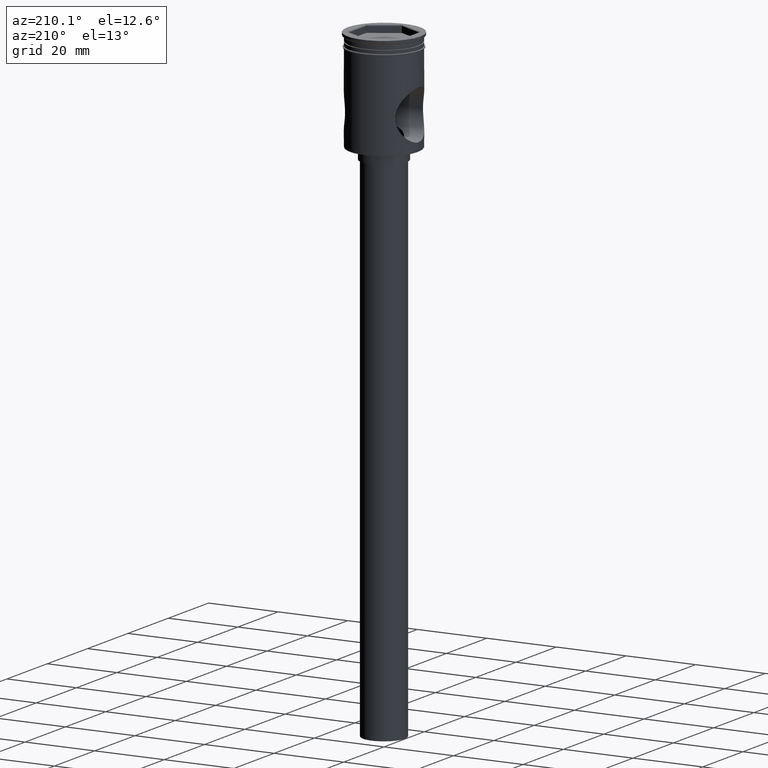
[diagram: clean part render]
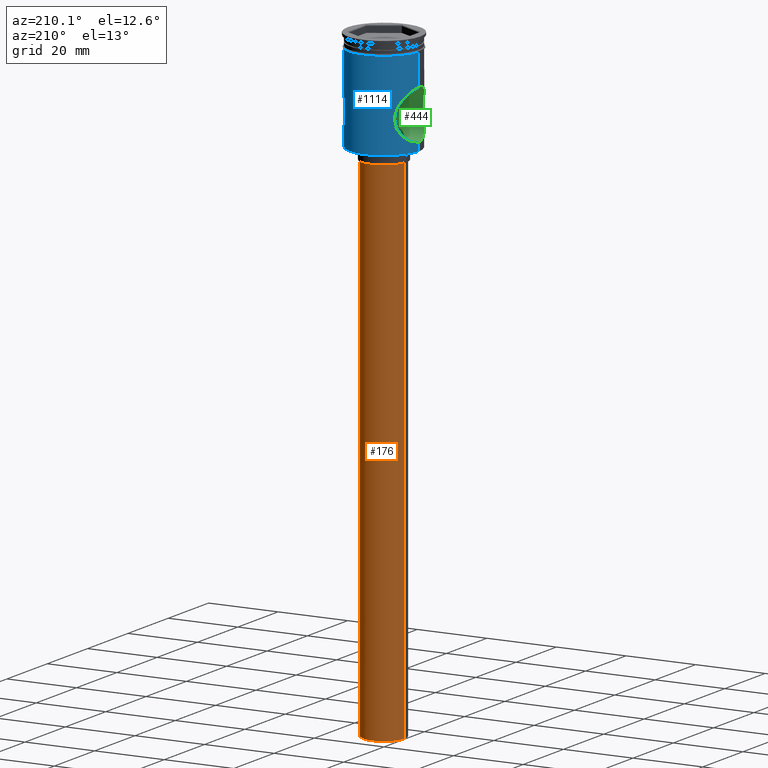
[diagram: same view with three faces highlighted in distinct colors, each labeled with its STEP entity id]
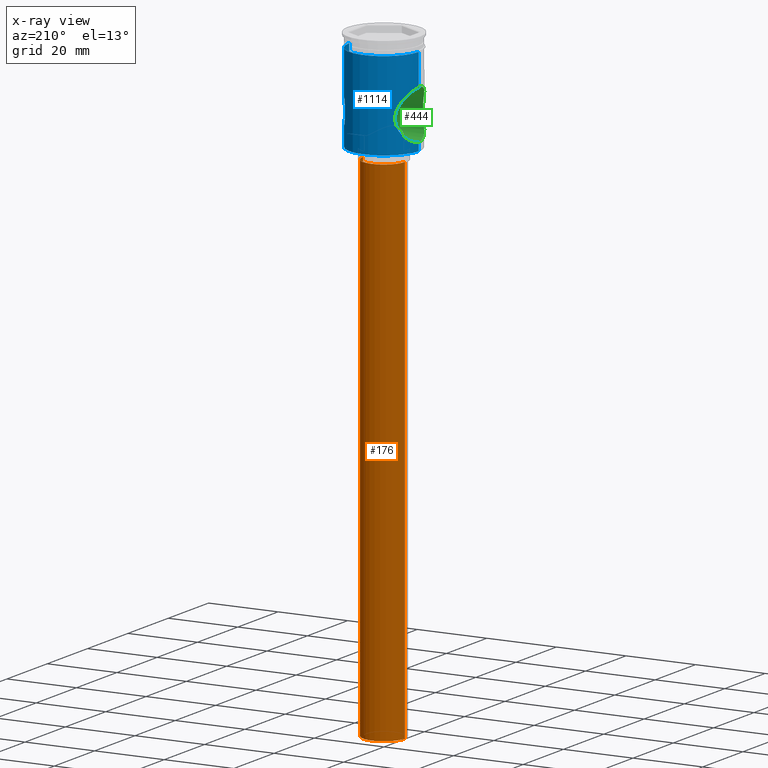
[diagram: x-ray of the same camera — body ghosted, the three highlighted faces saturated]
A machine part, auxiliary view with three faces highlighted in distinct colors.
The next image is the same camera in x-ray (body ghosted, the three faces saturated) — at least one of them is partly hidden behind the body in this view.
Their STEP definitions:

[orange] entity #176 — the highlighted cylindrical surface (edge-blend (fillet) strip) has radius 6 mm, axis along (-0, -0, 1).
#9 = CARTESIAN_POINT ( 'NONE',  ( 0.000000000000000000, 0.000000000000000000, -179.5000000000000000 ) ) ;
#16 = DIRECTION ( 'NONE',  ( 0.000000000000000000, 0.000000000000000000, -1.000000000000000000 ) ) ;
#126 = EDGE_CURVE ( 'NONE', #672, #527, #733, .T. ) ;
#139 = LINE ( 'NONE', #971, #869 ) ;
#172 = CARTESIAN_POINT ( 'NONE',  ( -6.000000000000000888, 7.347880794884120722E-16, -32.50000000000000000 ) ) ;
#176 = ADVANCED_FACE ( 'NONE', ( #1306 ), #585, .T. ) ;
#212 = LINE ( 'NONE', #569, #1074 ) ;
#292 = ORIENTED_EDGE ( 'NONE', *, *, #959, .F. ) ;
#364 = DIRECTION ( 'NONE',  ( -1.000000000000000000, 0.000000000000000000, 0.000000000000000000 ) ) ;
#403 = ORIENTED_EDGE ( 'NONE', *, *, #126, .T. ) ;
#413 = AXIS2_PLACEMENT_3D ( 'NONE', #9, #473, #1446 ) ;
#473 = DIRECTION ( 'NONE',  ( -0.000000000000000000, -0.000000000000000000, 1.000000000000000000 ) ) ;
#527 = VERTEX_POINT ( 'NONE', #1083 ) ;
#539 = CIRCLE ( 'NONE', #787, 6.000000000000000888 ) ;
#569 = CARTESIAN_POINT ( 'NONE',  ( 6.000000000000000888, 0.000000000000000000, -179.5000000000000000 ) ) ;
#585 = CYLINDRICAL_SURFACE ( 'NONE', #413, 6.000000000000000888 ) ;
#630 = CARTESIAN_POINT ( 'NONE',  ( 6.000000000000000888, 0.000000000000000000, -179.5000000000000000 ) ) ;
#672 = VERTEX_POINT ( 'NONE', #172 ) ;
#676 = VERTEX_POINT ( 'NONE', #754 ) ;
#731 = CARTESIAN_POINT ( 'NONE',  ( 0.000000000000000000, 0.000000000000000000, -179.5000000000000000 ) ) ;
#733 = CIRCLE ( 'NONE', #1135, 6.000000000000000888 ) ;
#754 = CARTESIAN_POINT ( 'NONE',  ( -6.000000000000000888, 7.347880794884120722E-16, -179.5000000000000000 ) ) ;
#787 = AXIS2_PLACEMENT_3D ( 'NONE', #731, #962, #847 ) ;
#847 = DIRECTION ( 'NONE',  ( -1.000000000000000000, 0.000000000000000000, 0.000000000000000000 ) ) ;
#855 = EDGE_LOOP ( 'NONE', ( #292, #1501, #403, #1369 ) ) ;
#869 = VECTOR ( 'NONE', #1449, 1000.000000000000000 ) ;
#897 = EDGE_CURVE ( 'NONE', #676, #672, #139, .T. ) ;
#959 = EDGE_CURVE ( 'NONE', #676, #976, #539, .T. ) ;
#962 = DIRECTION ( 'NONE',  ( 0.000000000000000000, 0.000000000000000000, -1.000000000000000000 ) ) ;
#971 = CARTESIAN_POINT ( 'NONE',  ( -6.000000000000000888, 7.347880794884120722E-16, -179.5000000000000000 ) ) ;
#976 = VERTEX_POINT ( 'NONE', #630 ) ;
#1074 = VECTOR ( 'NONE', #1513, 1000.000000000000000 ) ;
#1083 = CARTESIAN_POINT ( 'NONE',  ( 6.000000000000000888, 0.000000000000000000, -32.50000000000000000 ) ) ;
#1135 = AXIS2_PLACEMENT_3D ( 'NONE', #1300, #16, #364 ) ;
#1300 = CARTESIAN_POINT ( 'NONE',  ( 0.000000000000000000, 0.000000000000000000, -32.50000000000000000 ) ) ;
#1306 = FACE_OUTER_BOUND ( 'NONE', #855, .T. ) ;
#1369 = ORIENTED_EDGE ( 'NONE', *, *, #1463, .F. ) ;
#1446 = DIRECTION ( 'NONE',  ( 1.000000000000000000, 0.000000000000000000, 0.000000000000000000 ) ) ;
#1449 = DIRECTION ( 'NONE',  ( -0.000000000000000000, -0.000000000000000000, 1.000000000000000000 ) ) ;
#1463 = EDGE_CURVE ( 'NONE', #976, #527, #212, .T. ) ;
#1501 = ORIENTED_EDGE ( 'NONE', *, *, #897, .T. ) ;
#1513 = DIRECTION ( 'NONE',  ( -0.000000000000000000, -0.000000000000000000, 1.000000000000000000 ) ) ;

[blue] entity #1114 — the highlighted cylindrical surface (partial cylindrical patch) has radius 10 mm, axis along (-0, -0, 1).
#1 = CARTESIAN_POINT ( 'NONE',  ( 9.999999999999994671, 0.000000000000000000, -27.00000000000001066 ) ) ;
#7 = CARTESIAN_POINT ( 'NONE',  ( -7.574535355013248150, 6.529908853628296761, -22.53201108648862316 ) ) ;
#15 = EDGE_CURVE ( 'NONE', #893, #193, #904, .T. ) ;
#24 = B_SPLINE_CURVE_WITH_KNOTS ( 'NONE', 3,
 ( #263, #1438, #605, #722, #1476, #256, #140, #503, #369, #50, #1450, #623, #1227, #730, #844, #150, #1100, #508, #1316, #1088, #1081, #26, #996, #1210, #982, #1460, #385, #1333, #989, #272, #712, #1467, #391, #1343, #870, #165, #1194, #399, #132, #186, #758, #533, #894, #287, #425, #643 ),
 .UNSPECIFIED., .F., .F.,
 ( 4, 2, 2, 2, 2, 2, 2, 2, 2, 2, 2, 2, 2, 2, 2, 2, 2, 2, 2, 2, 2, 2, 4 ),
 ( 0.000000000000000000, 0.001421073207666945183, 0.002842146415333890366, 0.004263219623000837066, 0.005684292830667782466, 0.007105366038334726998, 0.008526439246001672398, 0.009236975849835149868, 0.009947512453668627339, 0.01065804905750210654, 0.01136858566133558401, 0.01207912226516906322, 0.01278965886900253895, 0.01421073207666949390, 0.01492126868050296790, 0.01563180528433644190, 0.01705287849200338296, 0.01847395169967032749, 0.01918448830350380149, 0.01989502490733727202, 0.02131609811500421309, 0.02202663471883768362, 0.02273717132267115415 ),
 .UNSPECIFIED. ) ;
#26 = CARTESIAN_POINT ( 'NONE',  ( 7.141373392009660925, 7.000056148497767694, -19.76373034873126144 ) ) ;
#42 = LINE ( 'NONE', #1103, #297 ) ;
#50 = CARTESIAN_POINT ( 'NONE',  ( 8.500359578522527215, 5.279417043634754947, -24.61763755135371312 ) ) ;
#91 = CARTESIAN_POINT ( 'NONE',  ( -9.999999999999998224, 0.4807969081117817733, -27.00000000000001066 ) ) ;
#92 = AXIS2_PLACEMENT_3D ( 'NONE', #1069, #130, #699 ) ;
#100 = CARTESIAN_POINT ( 'NONE',  ( -9.351609315107900500, 3.564938189428367377, -26.04074502495870647 ) ) ;
#101 = DIRECTION ( 'NONE',  ( -0.000000000000000000, -0.000000000000000000, 1.000000000000000000 ) ) ;
#108 = CARTESIAN_POINT ( 'NONE',  ( -7.322655419112948927, 6.810500286563438976, -18.36528137380275538 ) ) ;
#111 = CARTESIAN_POINT ( 'NONE',  ( -10.00000000000000000, 1.224646799147353256E-15, -3.999999999999996447 ) ) ;
#115 = CARTESIAN_POINT ( 'NONE',  ( -7.963207023572478782, 6.050255927956311730, -16.47232531239752262 ) ) ;
#121 = VERTEX_POINT ( 'NONE', #1 ) ;
#124 = CARTESIAN_POINT ( 'NONE',  ( -9.730782946235683184, 2.316105786581691639, -26.60989879506474054 ) ) ;
#130 = DIRECTION ( 'NONE',  ( -0.000000000000000000, -0.000000000000000000, 1.000000000000000000 ) ) ;
#132 = CARTESIAN_POINT ( 'NONE',  ( 9.553141715981873006, 2.964211287661889571, -13.65436461758242181 ) ) ;
#140 = CARTESIAN_POINT ( 'NONE',  ( 9.349377247001186220, 3.571280898155820172, -26.03738208151085587 ) ) ;
#148 = ORIENTED_EDGE ( 'NONE', *, *, #1206, .F. ) ;
#150 = CARTESIAN_POINT ( 'NONE',  ( 7.379165411094851912, 6.749558967525724817, -21.87002777218119931 ) ) ;
#160 = EDGE_CURVE ( 'NONE', #1475, #532, #634, .T. ) ;
#165 = CARTESIAN_POINT ( 'NONE',  ( 9.267396788860448709, 3.762388530127553476, -14.09286872329777474 ) ) ;
#166 = CYLINDRICAL_SURFACE ( 'NONE', #493, 9.999999999999994671 ) ;
#185 = ORIENTED_EDGE ( 'NONE', *, *, #160, .T. ) ;
#186 = CARTESIAN_POINT ( 'NONE',  ( 9.735967975428478027, 2.325336189795355502, -13.38128717480536345 ) ) ;
#193 = VERTEX_POINT ( 'NONE', #111 ) ;
#210 = CARTESIAN_POINT ( 'NONE',  ( -9.826638545464753349, 1.868062541291059642, -26.75021854738501759 ) ) ;
#216 = CARTESIAN_POINT ( 'NONE',  ( -9.028965068475375944, 4.317457269925931485, -14.47181101200376574 ) ) ;
#217 = EDGE_CURVE ( 'NONE', #532, #379, #1197, .T. ) ;
#228 = CARTESIAN_POINT ( 'NONE',  ( -9.999999999999994671, 1.229780025839397734E-15, -13.00000000000000355 ) ) ;
#233 = CARTESIAN_POINT ( 'NONE',  ( -8.050554706296177088, 5.933943087171876130, -16.28011583648020988 ) ) ;
#238 = EDGE_CURVE ( 'NONE', #1060, #239, #42, .T. ) ;
#239 = VERTEX_POINT ( 'NONE', #1216 ) ;
#241 = CARTESIAN_POINT ( 'NONE',  ( -9.832878540591766026, 1.879722866531852610, -13.24054240779419089 ) ) ;
#256 = CARTESIAN_POINT ( 'NONE',  ( 9.493823586986472662, 3.171854784083770085, -26.25704949909892250 ) ) ;
#263 = CARTESIAN_POINT ( 'NONE',  ( 9.999999999999994671, 0.000000000000000000, -27.00000000000001066 ) ) ;
#266 = DIRECTION ( 'NONE',  ( -0.000000000000000000, -0.000000000000000000, 1.000000000000000000 ) ) ;
#272 = CARTESIAN_POINT ( 'NONE',  ( 7.967226261725709691, 6.044961550507583325, -16.46329765270407108 ) ) ;
#287 = CARTESIAN_POINT ( 'NONE',  ( 9.991574020215791663, 0.4743472386555617204, -13.01202085301403777 ) ) ;
#297 = VECTOR ( 'NONE', #266, 1000.000000000000000 ) ;
#306 = ORIENTED_EDGE ( 'NONE', *, *, #624, .F. ) ;
#343 = CIRCLE ( 'NONE', #1337, 9.999999999999998224 ) ;
#348 = CARTESIAN_POINT ( 'NONE',  ( -9.999999999999996447, 0.000000000000000000, -27.00000000000000355 ) ) ;
#356 = CARTESIAN_POINT ( 'NONE',  ( -8.497179343882921287, 5.284524261307590010, -15.38819392766633243 ) ) ;
#357 = EDGE_LOOP ( 'NONE', ( #185, #679, #148, #481, #306, #1141, #747, #1076 ) ) ;
#358 = DIRECTION ( 'NONE',  ( -0.000000000000000000, -0.000000000000000000, 1.000000000000000000 ) ) ;
#363 = CARTESIAN_POINT ( 'NONE',  ( -7.505468983612143319, 6.608824641700789648, -22.31875249157933183 ) ) ;
#369 = CARTESIAN_POINT ( 'NONE',  ( 8.856372138511654057, 4.657577678256724418, -25.24421500772974269 ) ) ;
#379 = VERTEX_POINT ( 'NONE', #348 ) ;
#385 = CARTESIAN_POINT ( 'NONE',  ( 7.495754172928653425, 6.623269820279323206, -17.68917710553390421 ) ) ;
#391 = CARTESIAN_POINT ( 'NONE',  ( 8.498707828545162712, 5.282283036785497821, -15.38527946463393370 ) ) ;
#399 = CARTESIAN_POINT ( 'NONE',  ( 9.485754788391535186, 3.172574074835096791, -13.75608760595409663 ) ) ;
#425 = CARTESIAN_POINT ( 'NONE',  ( 9.999999999999996447, 0.2371603752032602208, -13.00000000000000711 ) ) ;
#435 = VECTOR ( 'NONE', #358, 1000.000000000000000 ) ;
#436 = VECTOR ( 'NONE', #1481, 1000.000000000000000 ) ;
#457 = CARTESIAN_POINT ( 'NONE',  ( -8.853430568094132980, 4.663155653245508070, -14.76073180007297125 ) ) ;
#477 = CARTESIAN_POINT ( 'NONE',  ( -7.377383315084117932, 6.751497144694277530, -18.13709901651008494 ) ) ;
#481 = ORIENTED_EDGE ( 'NONE', *, *, #15, .T. ) ;
#493 = AXIS2_PLACEMENT_3D ( 'NONE', #891, #896, #1032 ) ;
#503 = CARTESIAN_POINT ( 'NONE',  ( 9.029024665842507957, 4.317593744654971033, -25.52832831042054806 ) ) ;
#508 = CARTESIAN_POINT ( 'NONE',  ( 7.236111701560244747, 6.902383710959966834, -21.18811620976742915 ) ) ;
#532 = VERTEX_POINT ( 'NONE', #597 ) ;
#533 = CARTESIAN_POINT ( 'NONE',  ( 9.932071413309429886, 1.186883990593142979, -13.09730212679606964 ) ) ;
#557 = CARTESIAN_POINT ( 'NONE',  ( -9.932287513067288742, 1.185065133237715562, -13.09699146176595974 ) ) ;
#567 = CARTESIAN_POINT ( 'NONE',  ( -9.867116120145130509, 1.641278058953928198, -26.80890176429204885 ) ) ;
#580 = CARTESIAN_POINT ( 'NONE',  ( -7.723089038241832682, 6.353518016691833914, -22.94679462982522722 ) ) ;
#591 = CARTESIAN_POINT ( 'NONE',  ( -7.381411116935110428, 6.747102913955162151, -21.87877048370861743 ) ) ;
#597 = CARTESIAN_POINT ( 'NONE',  ( -9.999999999999994671, 1.224646799147352665E-15, -29.29999999999997229 ) ) ;
#605 = CARTESIAN_POINT ( 'NONE',  ( 9.965446655919850016, 0.9519641332654187327, -26.95088558220736630 ) ) ;
#620 = CARTESIAN_POINT ( 'NONE',  ( 0.000000000000000000, 0.000000000000000000, -3.999999999999996447 ) ) ;
#623 = CARTESIAN_POINT ( 'NONE',  ( 7.964400624432384390, 6.054727537725132613, -23.54044438658495508 ) ) ;
#624 = EDGE_CURVE ( 'NONE', #239, #193, #343, .T. ) ;
#634 = CIRCLE ( 'NONE', #92, 9.999999999999994671 ) ;
#643 = CARTESIAN_POINT ( 'NONE',  ( 9.999999999999994671, -5.133226810943367768E-18, -13.00000000000000355 ) ) ;
#674 = CARTESIAN_POINT ( 'NONE',  ( -9.991596185262174856, 0.4736682493084680701, -13.01198930438258117 ) ) ;
#679 = ORIENTED_EDGE ( 'NONE', *, *, #217, .T. ) ;
#680 = CARTESIAN_POINT ( 'NONE',  ( -8.503943671969903306, 5.273689396165736731, -24.62422230267287304 ) ) ;
#691 = CARTESIAN_POINT ( 'NONE',  ( -9.957864273581446213, 0.9472565907286251141, -13.06030547907275796 ) ) ;
#697 = CARTESIAN_POINT ( 'NONE',  ( -7.796802139286405087, 6.263237125868982069, -16.86600156342442602 ) ) ;
#699 = DIRECTION ( 'NONE',  ( -1.000000000000000000, 0.000000000000000000, 0.000000000000000000 ) ) ;
#703 = CARTESIAN_POINT ( 'NONE',  ( -9.035512705743391493, 4.303590503429356673, -25.53881697926559013 ) ) ;
#712 = CARTESIAN_POINT ( 'NONE',  ( 8.053311715077979827, 5.930176009131115755, -16.27420902905398137 ) ) ;
#714 = EDGE_CURVE ( 'NONE', #1475, #121, #1357, .T. ) ;
#722 = CARTESIAN_POINT ( 'NONE',  ( 9.834047061028444503, 1.872933838790287631, -26.76115115372198616 ) ) ;
#730 = CARTESIAN_POINT ( 'NONE',  ( 7.573222039985391341, 6.531435267832768510, -22.52812481744788897 ) ) ;
#746 = DIRECTION ( 'NONE',  ( -0.000000000000000000, -0.000000000000000000, 1.000000000000000000 ) ) ;
#747 = ORIENTED_EDGE ( 'NONE', *, *, #1292, .F. ) ;
#758 = CARTESIAN_POINT ( 'NONE',  ( 9.832512437962645180, 1.881659858244550509, -13.24107387809922898 ) ) ;
#761 = CARTESIAN_POINT ( 'NONE',  ( 9.999999999999994671, 0.000000000000000000, 0.000000000000000000 ) ) ;
#811 = CARTESIAN_POINT ( 'NONE',  ( -7.191763660842745765, 6.949507115151161152, -20.96152780032075569 ) ) ;
#819 = CARTESIAN_POINT ( 'NONE',  ( -9.492393824703034610, 3.176669941205828795, -13.74509325342724253 ) ) ;
#825 = CARTESIAN_POINT ( 'NONE',  ( -9.675488818793542833, 2.536388918100093370, -26.52836702033825489 ) ) ;
#835 = CARTESIAN_POINT ( 'NONE',  ( -8.322069302564289117, 5.553051878775062455, -24.28499264081531095 ) ) ;
#844 = CARTESIAN_POINT ( 'NONE',  ( 7.503273641266415162, 6.611317046147628496, -22.31171733569519944 ) ) ;
#870 = CARTESIAN_POINT ( 'NONE',  ( 9.029975738911995009, 4.315133941133939999, -14.47019995321800323 ) ) ;
#891 = CARTESIAN_POINT ( 'NONE',  ( 0.000000000000000000, 0.000000000000000000, 0.000000000000000000 ) ) ;
#893 = VERTEX_POINT ( 'NONE', #1305 ) ;
#894 = CARTESIAN_POINT ( 'NONE',  ( 9.957729828106900882, 0.9487746701410815220, -13.06049825370512707 ) ) ;
#896 = DIRECTION ( 'NONE',  ( -0.000000000000000000, -0.000000000000000000, 1.000000000000000000 ) ) ;
#904 = LINE ( 'NONE', #1042, #1439 ) ;
#914 = CARTESIAN_POINT ( 'NONE',  ( 9.999999999999994671, 0.000000000000000000, -29.29999999999997229 ) ) ;
#952 = CARTESIAN_POINT ( 'NONE',  ( -7.569330506494653221, 6.535933251526299337, -17.48356472559870411 ) ) ;
#982 = CARTESIAN_POINT ( 'NONE',  ( 7.234464554488559962, 6.904114004842417884, -18.82145945963317857 ) ) ;
#989 = CARTESIAN_POINT ( 'NONE',  ( 7.801002067758135539, 6.258004569467825462, -16.85560777748649386 ) ) ;
#996 = CARTESIAN_POINT ( 'NONE',  ( 7.153235015771536531, 6.988014041043824953, -19.52714534028610061 ) ) ;
#1032 = DIRECTION ( 'NONE',  ( 1.000000000000000000, 0.000000000000000000, 0.000000000000000000 ) ) ;
#1039 = CARTESIAN_POINT ( 'NONE',  ( -7.141989287018506438, 6.999427809131203659, -20.49012689816927946 ) ) ;
#1042 = CARTESIAN_POINT ( 'NONE',  ( -9.999999999999994671, 1.224646799147352665E-15, 0.000000000000000000 ) ) ;
#1050 = CARTESIAN_POINT ( 'NONE',  ( -9.999999999999996447, 0.000000000000000000, -27.00000000000000355 ) ) ;
#1056 = CARTESIAN_POINT ( 'NONE',  ( -7.717429328536875133, 6.360383034377457001, -17.06803860621227287 ) ) ;
#1060 = VERTEX_POINT ( 'NONE', #1443 ) ;
#1062 = CARTESIAN_POINT ( 'NONE',  ( -8.056358060451357161, 5.926078000082595665, -23.73242365119358155 ) ) ;
#1069 = CARTESIAN_POINT ( 'NONE',  ( 0.000000000000000000, 0.000000000000000000, -29.29999999999997229 ) ) ;
#1076 = ORIENTED_EDGE ( 'NONE', *, *, #714, .F. ) ;
#1081 = CARTESIAN_POINT ( 'NONE',  ( 7.141483849871202771, 6.999943458932625262, -20.23958506209359243 ) ) ;
#1088 = CARTESIAN_POINT ( 'NONE',  ( 7.153700441637879770, 6.987541224765998926, -20.48080140017840733 ) ) ;
#1100 = CARTESIAN_POINT ( 'NONE',  ( 7.325106434378655607, 6.807865243658028476, -21.64544578927129237 ) ) ;
#1103 = CARTESIAN_POINT ( 'NONE',  ( 9.999999999999994671, 0.000000000000000000, 0.000000000000000000 ) ) ;
#1114 = ADVANCED_FACE ( 'NONE', ( #1230 ), #166, .T. ) ;
#1141 = ORIENTED_EDGE ( 'NONE', *, *, #238, .F. ) ;
#1154 = CARTESIAN_POINT ( 'NONE',  ( -9.965325511264431668, 0.9525671816038204787, -26.95070955909274346 ) ) ;
#1164 = CARTESIAN_POINT ( 'NONE',  ( -9.494221684495640190, 3.170672659151728912, -26.25765240908376441 ) ) ;
#1180 = CARTESIAN_POINT ( 'NONE',  ( -7.500597748671954612, 6.614342876288898054, -17.69704926583546722 ) ) ;
#1185 = CARTESIAN_POINT ( 'NONE',  ( -9.347318963212909892, 3.576349491498996613, -13.96584429441086250 ) ) ;
#1194 = CARTESIAN_POINT ( 'NONE',  ( 9.343068346694408888, 3.570972421456893642, -13.97506645596566877 ) ) ;
#1197 = LINE ( 'NONE', #1427, #435 ) ;
#1206 = EDGE_CURVE ( 'NONE', #893, #379, #1352, .T. ) ;
#1208 = DIRECTION ( 'NONE',  ( 1.000000000000000000, 0.000000000000000000, 0.000000000000000000 ) ) ;
#1210 = CARTESIAN_POINT ( 'NONE',  ( 7.199668910925416832, 6.940164191266630311, -19.05657392165621289 ) ) ;
#1216 = CARTESIAN_POINT ( 'NONE',  ( 9.999999999999998224, 0.000000000000000000, -3.999999999999996447 ) ) ;
#1227 = CARTESIAN_POINT ( 'NONE',  ( 7.796463043157196182, 6.266459839169562507, -23.15209899686185224 ) ) ;
#1230 = FACE_OUTER_BOUND ( 'NONE', #357, .T. ) ;
#1288 = CARTESIAN_POINT ( 'NONE',  ( -7.969012120586809189, 6.042611853496009822, -23.54072391938827735 ) ) ;
#1292 = EDGE_CURVE ( 'NONE', #121, #1060, #24, .T. ) ;
#1298 = CARTESIAN_POINT ( 'NONE',  ( -9.999999999999992895, 0.2368473339933030442, -13.00000000000000355 ) ) ;
#1304 = CARTESIAN_POINT ( 'NONE',  ( -9.736384942666980180, 2.323699784143521185, -13.38067151163704871 ) ) ;
#1305 = CARTESIAN_POINT ( 'NONE',  ( -9.999999999999994671, 1.229780025839397734E-15, -13.00000000000000355 ) ) ;
#1316 = CARTESIAN_POINT ( 'NONE',  ( 7.201179731105407100, 6.938600208746065867, -20.95536877560809330 ) ) ;
#1333 = CARTESIAN_POINT ( 'NONE',  ( 7.720495804876724044, 6.356685689900112735, -17.05985571267803991 ) ) ;
#1337 = AXIS2_PLACEMENT_3D ( 'NONE', #620, #746, #1208 ) ;
#1343 = CARTESIAN_POINT ( 'NONE',  ( 8.857763224790600631, 4.655166966848104160, -14.75332674821394185 ) ) ;
#1352 = B_SPLINE_CURVE_WITH_KNOTS ( 'NONE', 3,
 ( #228, #1298, #674, #691, #557, #241, #1304, #819, #1185, #216, #457, #356, #1406, #233, #115, #697, #1056, #952, #1180, #477, #108, #1433, #1398, #1039, #811, #1414, #591, #363, #7, #580, #1532, #1288, #1062, #835, #680, #1525, #703, #100, #1164, #825, #124, #210, #567, #1154, #91, #1050 ),
 .UNSPECIFIED., .F., .F.,
 ( 4, 2, 2, 2, 2, 2, 2, 2, 2, 2, 2, 2, 2, 2, 2, 2, 2, 2, 2, 2, 2, 2, 4 ),
 ( 0.02273717132267112292, 0.02344677004960169994, 0.02415636877653227696, 0.02557556623039343099, 0.02699476368425458156, 0.02841396113811573559, 0.02983315859197688963, 0.03054275731890747012, 0.03125235604583804366, 0.03196195477276862762, 0.03267155349969920464, 0.03409075095356035867, 0.03550994840742151271, 0.03621954713435208278, 0.03692914586128265980, 0.03763874458821323682, 0.03834834331514381384, 0.03976754076900496787, 0.04118673822286612884, 0.04260593567672728288, 0.04331553440365785990, 0.04402513313058842997, 0.04544433058444957707 ),
 .UNSPECIFIED. ) ;
#1357 = LINE ( 'NONE', #761, #436 ) ;
#1398 = CARTESIAN_POINT ( 'NONE',  ( -7.140877080678154520, 7.000562488098499792, -19.52635574343557323 ) ) ;
#1406 = CARTESIAN_POINT ( 'NONE',  ( -8.315544161946238688, 5.562748588078728851, -15.72768175892419862 ) ) ;
#1414 = CARTESIAN_POINT ( 'NONE',  ( -7.326263957022342233, 6.806624336356017935, -21.65073055260620905 ) ) ;
#1427 = CARTESIAN_POINT ( 'NONE',  ( -9.999999999999994671, 1.224646799147352665E-15, 0.000000000000000000 ) ) ;
#1433 = CARTESIAN_POINT ( 'NONE',  ( -7.189382404875349408, 6.951946978929631094, -19.05590796920064633 ) ) ;
#1438 = CARTESIAN_POINT ( 'NONE',  ( 9.999999999999994671, 0.4814323775651360160, -27.00000000000000711 ) ) ;
#1439 = VECTOR ( 'NONE', #101, 1000.000000000000000 ) ;
#1443 = CARTESIAN_POINT ( 'NONE',  ( 9.999999999999994671, -5.133226810943367768E-18, -13.00000000000000355 ) ) ;
#1450 = CARTESIAN_POINT ( 'NONE',  ( 8.315624236750037923, 5.562535070965512141, -24.27231501587448292 ) ) ;
#1460 = CARTESIAN_POINT ( 'NONE',  ( 7.368839572955796058, 6.761454996973014886, -18.12764364703029329 ) ) ;
#1467 = CARTESIAN_POINT ( 'NONE',  ( 8.316470757484857756, 5.561257273121390732, -15.72607428983809008 ) ) ;
#1475 = VERTEX_POINT ( 'NONE', #914 ) ;
#1476 = CARTESIAN_POINT ( 'NONE',  ( 9.735585976469911529, 2.326309258653758594, -26.61812786508321693 ) ) ;
#1481 = DIRECTION ( 'NONE',  ( -0.000000000000000000, -0.000000000000000000, 1.000000000000000000 ) ) ;
#1525 = CARTESIAN_POINT ( 'NONE',  ( -8.860185483737918588, 4.650373212660217526, -25.25064384002004658 ) ) ;
#1532 = CARTESIAN_POINT ( 'NONE',  ( -7.802583678074495488, 6.256037095215747357, -23.14831442975813403 ) ) ;

[green] entity #444 — the highlighted cylindrical surface (edge-blend (fillet) strip) has radius 7 mm, axis along (1, -0, -0).
#1 = CARTESIAN_POINT ( 'NONE',  ( 9.999999999999994671, 0.000000000000000000, -27.00000000000001066 ) ) ;
#48 = EDGE_CURVE ( 'NONE', #628, #281, #743, .T. ) ;
#60 = CARTESIAN_POINT ( 'NONE',  ( 9.494221684495640190, -3.170672659151725803, -26.25765240908376441 ) ) ;
#70 = CARTESIAN_POINT ( 'NONE',  ( 9.999999999999996447, -0.2368473339933005184, -13.00000000000000178 ) ) ;
#73 = CARTESIAN_POINT ( 'NONE',  ( -3.945877027014517591, -3.087718830034456463, -26.28892569280893809 ) ) ;
#79 = CARTESIAN_POINT ( 'NONE',  ( 9.999999999999994671, -5.133226810943367768E-18, -13.00000000000000355 ) ) ;
#84 = CARTESIAN_POINT ( 'NONE',  ( 7.381411116935109540, -6.747102913955163039, -21.87877048370861033 ) ) ;
#86 = CARTESIAN_POINT ( 'NONE',  ( -1.173690506892070884, -4.863162860794930431, -25.03506475786364049 ) ) ;
#87 = CARTESIAN_POINT ( 'NONE',  ( -7.325106434378655607, -6.807865243658027588, -21.64544578927128882 ) ) ;
#93 = CARTESIAN_POINT ( 'NONE',  ( -1.804206400145115019, -4.665928648188177874, -25.21882270820486127 ) ) ;
#95 = CARTESIAN_POINT ( 'NONE',  ( -7.503273641266416050, -6.611317046147628496, -22.31171733569519944 ) ) ;
#103 = CARTESIAN_POINT ( 'NONE',  ( -7.141483849871206324, -6.999943458932624374, -20.23958506209359243 ) ) ;
#120 = CARTESIAN_POINT ( 'NONE',  ( -9.485754788391531633, -3.172574074835091462, -13.75608760595409308 ) ) ;
#121 = VERTEX_POINT ( 'NONE', #1 ) ;
#143 = ORIENTED_EDGE ( 'NONE', *, *, #1504, .T. ) ;
#184 = CARTESIAN_POINT ( 'NONE',  ( 7.500597748671954612, -6.614342876288897166, -17.69704926583546722 ) ) ;
#189 = CARTESIAN_POINT ( 'NONE',  ( 2.527940221282912070, -4.316828484673395749, -25.51131394923564599 ) ) ;
#199 = DIRECTION ( 'NONE',  ( 1.000000000000000000, -0.000000000000000000, -0.000000000000000000 ) ) ;
#203 = CARTESIAN_POINT ( 'NONE',  ( 7.322655419112947150, -6.810500286563441641, -18.36528137380276249 ) ) ;
#206 = CARTESIAN_POINT ( 'NONE',  ( -7.964400624432382614, -6.054727537725130837, -23.54044438658495153 ) ) ;
#225 = VECTOR ( 'NONE', #504, 1000.000000000000000 ) ;
#236 = CARTESIAN_POINT ( 'NONE',  ( -7.368839572955796058, -6.761454996973015774, -18.12764364703030395 ) ) ;
#281 = VERTEX_POINT ( 'NONE', #774 ) ;
#296 = CARTESIAN_POINT ( 'NONE',  ( 9.999999999999996447, -0.4807969081117849930, -27.00000000000000711 ) ) ;
#303 = CARTESIAN_POINT ( 'NONE',  ( 7.140877080678153632, -7.000562488098498903, -19.52635574343557678 ) ) ;
#310 = CARTESIAN_POINT ( 'NONE',  ( 9.492393824703038163, -3.176669941205827907, -13.74509325342724075 ) ) ;
#311 = ORIENTED_EDGE ( 'NONE', *, *, #1155, .T. ) ;
#316 = CARTESIAN_POINT ( 'NONE',  ( 9.347318963212909892, -3.576349491498993505, -13.96584429441085717 ) ) ;
#320 = CARTESIAN_POINT ( 'NONE',  ( -4.964727920279955242, -0.6817536040784992757, -26.97468307285332045 ) ) ;
#321 = CARTESIAN_POINT ( 'NONE',  ( -7.379165411094855465, -6.749558967525724817, -21.87002777218120286 ) ) ;
#327 = CARTESIAN_POINT ( 'NONE',  ( 1.343304311183351141, -4.827927654831069226, -25.06953992219781924 ) ) ;
#328 = CARTESIAN_POINT ( 'NONE',  ( -7.720495804876727597, -6.356685689900114511, -17.05985571267803991 ) ) ;
#331 = EDGE_CURVE ( 'NONE', #281, #121, #448, .T. ) ;
#337 = CARTESIAN_POINT ( 'NONE',  ( -9.029975738911995009, -4.315133941133940887, -14.47019995321800501 ) ) ;
#340 = FACE_OUTER_BOUND ( 'NONE', #366, .T. ) ;
#346 = CARTESIAN_POINT ( 'NONE',  ( -7.234464554488559962, -6.904114004842420549, -18.82145945963318567 ) ) ;
#348 = CARTESIAN_POINT ( 'NONE',  ( -9.999999999999996447, 0.000000000000000000, -27.00000000000000355 ) ) ;
#366 = EDGE_LOOP ( 'NONE', ( #143, #756, #311, #1057, #479, #980 ) ) ;
#379 = VERTEX_POINT ( 'NONE', #348 ) ;
#408 = CARTESIAN_POINT ( 'NONE',  ( 9.736384942666981956, -2.323699784143519409, -13.38067151163704516 ) ) ;
#414 = CARTESIAN_POINT ( 'NONE',  ( 7.377383315084116155, -6.751497144694275754, -18.13709901651008494 ) ) ;
#422 = CARTESIAN_POINT ( 'NONE',  ( 7.963207023572480558, -6.050255927956311730, -16.47232531239752618 ) ) ;
#424 = CARTESIAN_POINT ( 'NONE',  ( -5.000000000000000888, 0.000000000000000000, -27.00000000000001066 ) ) ;
#429 = B_SPLINE_CURVE_WITH_KNOTS ( 'NONE', 3,
 ( #1520, #440, #686, #1168, #1175, #670, #577, #553, #693, #1394, #1403, #206, #562, #1150, #95, #321, #87, #1045, #1059, #1410, #103, #1034, #1053, #906, #346, #236, #453, #328, #796, #1275, #816, #939, #465, #677, #337, #1420, #1158, #120, #822, #1385, #700, #588, #1071, #431, #790, #447 ),
 .UNSPECIFIED., .F., .F.,
 ( 4, 2, 2, 2, 2, 2, 2, 2, 2, 2, 2, 2, 2, 2, 2, 2, 2, 2, 2, 2, 2, 2, 4 ),
 ( 0.000000000000000000, 0.001421073207666954290, 0.002842146415333908580, 0.004263219623000863087, 0.005684292830667816293, 0.007105366038334770366, 0.008526439246001722705, 0.009236975849835196706, 0.009947512453668670707, 0.01065804905750214297, 0.01136858566133561697, 0.01207912226516908924, 0.01278965886900256151, 0.01421073207666950777, 0.01492126868050297657, 0.01563180528433644884, 0.01705287849200338296, 0.01847395169967032055, 0.01918448830350378762, 0.01989502490733725468, 0.02131609811500418880, 0.02202663471883765586, 0.02273717132267112292 ),
 .UNSPECIFIED. ) ;
#430 = CARTESIAN_POINT ( 'NONE',  ( 4.827093604320183751, -1.346411915329733366, -26.87738926533192441 ) ) ;
#431 = CARTESIAN_POINT ( 'NONE',  ( -9.991574020215788110, -0.4743472386555552256, -13.01202085301403244 ) ) ;
#434 = CARTESIAN_POINT ( 'NONE',  ( 8.860185483737918588, -4.650373212660213085, -25.25064384002004303 ) ) ;
#438 = CARTESIAN_POINT ( 'NONE',  ( 2.247388876111526379, -4.469310144529878848, -25.38840017492477585 ) ) ;
#440 = CARTESIAN_POINT ( 'NONE',  ( -9.999999999999998224, -0.4814323775651352944, -27.00000000000000711 ) ) ;
#444 = ADVANCED_FACE ( 'NONE', ( #340 ), #917, .F. ) ;
#446 = CARTESIAN_POINT ( 'NONE',  ( 4.725794543730263086, -1.666404458266061539, -26.80617625524858383 ) ) ;
#447 = CARTESIAN_POINT ( 'NONE',  ( -9.999999999999994671, 1.229780025839397734E-15, -13.00000000000000355 ) ) ;
#448 = LINE ( 'NONE', #1507, #705 ) ;
#453 = CARTESIAN_POINT ( 'NONE',  ( -7.495754172928653425, -6.623269820279322317, -17.68917710553389711 ) ) ;
#465 = CARTESIAN_POINT ( 'NONE',  ( -8.498707828545159160, -5.282283036785493380, -15.38527946463392659 ) ) ;
#479 = ORIENTED_EDGE ( 'NONE', *, *, #48, .F. ) ;
#504 = DIRECTION ( 'NONE',  ( 1.000000000000000000, -0.000000000000000000, -0.000000000000000000 ) ) ;
#519 = LINE ( 'NONE', #725, #225 ) ;
#526 = CARTESIAN_POINT ( 'NONE',  ( 9.675488818793544610, -2.536388918100088485, -26.52836702033824778 ) ) ;
#536 = CARTESIAN_POINT ( 'NONE',  ( 7.969012120586810966, -6.042611853496006269, -23.54072391938827025 ) ) ;
#540 = CARTESIAN_POINT ( 'NONE',  ( 5.000000000000000888, 5.559607670071811640E-22, -27.00000000000000355 ) ) ;
#543 = CARTESIAN_POINT ( 'NONE',  ( 8.050554706296177088, -5.933943087171876130, -16.28011583648020988 ) ) ;
#544 = CARTESIAN_POINT ( 'NONE',  ( -0.3393453633138837633, -4.991404953799126964, -24.90779897752728544 ) ) ;
#548 = CARTESIAN_POINT ( 'NONE',  ( 8.503943671969897977, -5.273689396165734067, -24.62422230267287304 ) ) ;
#552 = CARTESIAN_POINT ( 'NONE',  ( -1.649477999012780138, -4.722976424013229924, -25.16701381806123550 ) ) ;
#553 = CARTESIAN_POINT ( 'NONE',  ( -9.029024665842506181, -4.317593744654968368, -25.52832831042054451 ) ) ;
#560 = CARTESIAN_POINT ( 'NONE',  ( -2.249958316707900252, -4.476817073581181639, -25.38387512191017237 ) ) ;
#562 = CARTESIAN_POINT ( 'NONE',  ( -7.796463043157197959, -6.266459839169562507, -23.15209899686185580 ) ) ;
#568 = CARTESIAN_POINT ( 'NONE',  ( -4.467234366927137046, -2.269772407451150720, -26.62927481249574413 ) ) ;
#577 = CARTESIAN_POINT ( 'NONE',  ( -9.349377247001186220, -3.571280898155816619, -26.03738208151085942 ) ) ;
#587 = B_SPLINE_CURVE_WITH_KNOTS ( 'NONE', 3,
 ( #79, #70, #903, #776, #1379, #1488, #408, #310, #316, #1509, #1148, #1496, #640, #543, #422, #1142, #1026, #1366, #184, #414, #203, #1256, #303, #1246, #646, #1502, #84, #785, #770, #1134, #1129, #536, #1020, #1264, #548, #434, #909, #1391, #60, #526, #1006, #1482, #882, #1358, #296, #801 ),
 .UNSPECIFIED., .F., .F.,
 ( 4, 2, 2, 2, 2, 2, 2, 2, 2, 2, 2, 2, 2, 2, 2, 2, 2, 2, 2, 2, 2, 2, 4 ),
 ( 0.02273717132267115415, 0.02344677004960173464, 0.02415636877653231512, 0.02557556623039347263, 0.02699476368425463360, 0.02841396113811579111, 0.02983315859197695208, 0.03054275731890752910, 0.03125235604583810611, 0.03196195477276868313, 0.03267155349969926015, 0.03409075095356042112, 0.03550994840742158210, 0.03621954713435215911, 0.03692914586128273613, 0.03763874458821332009, 0.03834834331514389710, 0.03976754076900505808, 0.04118673822286621211, 0.04260593567672736615, 0.04331553440365794316, 0.04402513313058852018, 0.04544433058444967422 ),
 .UNSPECIFIED. ) ;
#588 = CARTESIAN_POINT ( 'NONE',  ( -9.932071413309429886, -1.186883990593140314, -13.09730212679606964 ) ) ;
#628 = VERTEX_POINT ( 'NONE', #1331 ) ;
#640 = CARTESIAN_POINT ( 'NONE',  ( 8.315544161946235135, -5.562748588078726186, -15.72768175892419151 ) ) ;
#646 = CARTESIAN_POINT ( 'NONE',  ( 7.191763660842745765, -6.949507115151161152, -20.96152780032075569 ) ) ;
#653 = CARTESIAN_POINT ( 'NONE',  ( 3.744450800041878580, -3.328521687271348561, -26.16341259425989918 ) ) ;
#670 = CARTESIAN_POINT ( 'NONE',  ( -9.493823586986472662, -3.171854784083766532, -26.25704949909892605 ) ) ;
#677 = CARTESIAN_POINT ( 'NONE',  ( -8.857763224790602408, -4.655166966848104160, -14.75332674821394185 ) ) ;
#685 = CARTESIAN_POINT ( 'NONE',  ( 0.6797355553548922735, -4.956478286556073698, -24.94306880164815254 ) ) ;
#686 = CARTESIAN_POINT ( 'NONE',  ( -9.965446655919851793, -0.9519641332654177335, -26.95088558220736275 ) ) ;
#693 = CARTESIAN_POINT ( 'NONE',  ( -8.856372138511659386, -4.657577678256725306, -25.24421500772974625 ) ) ;
#700 = CARTESIAN_POINT ( 'NONE',  ( -9.832512437962641627, -1.881659858244549621, -13.24107387809922720 ) ) ;
#705 = VECTOR ( 'NONE', #922, 1000.000000000000000 ) ;
#725 = CARTESIAN_POINT ( 'NONE',  ( -10.50000000000000000, 8.572527594031471218E-16, -13.00000000000000533 ) ) ;
#741 = VECTOR ( 'NONE', #199, 1000.000000000000000 ) ;
#743 = B_SPLINE_CURVE_WITH_KNOTS ( 'NONE', 3,
 ( #424, #1381, #320, #929, #1498, #568, #1022, #73, #1028, #1033, #1166, #1052, #560, #93, #552, #1149, #86, #1527, #899, #544, #805, #1408, #1258, #685, #1273, #327, #1375, #1251, #438, #189, #919, #912, #1505, #653, #1393, #1519, #795, #446, #430, #1401, #1136, #540 ),
 .UNSPECIFIED., .F., .F.,
 ( 4, 2, 2, 2, 2, 2, 2, 2, 2, 2, 2, 2, 2, 2, 2, 2, 2, 2, 2, 2, 4 ),
 ( 0.000000000000000000, 0.001017778397128051363, 0.002035556794256102725, 0.003053335191384154088, 0.004071113588512205450, 0.005088891985640256813, 0.006106670382768309910, 0.006615559581332337326, 0.007124448779896364742, 0.007633337978460393025, 0.008142227177024421308, 0.008651116375588449592, 0.009160005574152477875, 0.01017778397128053097, 0.01068667316984455579, 0.01119556236840858233, 0.01221334076553663196, 0.01323111916266468159, 0.01424889755979273122, 0.01526667595692078085, 0.01628445435404882874 ),
 .UNSPECIFIED. ) ;
#753 = LINE ( 'NONE', #1145, #741 ) ;
#756 = ORIENTED_EDGE ( 'NONE', *, *, #1019, .T. ) ;
#770 = CARTESIAN_POINT ( 'NONE',  ( 7.574535355013245486, -6.529908853628298537, -22.53201108648861961 ) ) ;
#774 = CARTESIAN_POINT ( 'NONE',  ( 5.000000000000000888, 5.559607670071811640E-22, -27.00000000000000355 ) ) ;
#776 = CARTESIAN_POINT ( 'NONE',  ( 9.957864273581442660, -0.9472565907286202291, -13.06030547907275619 ) ) ;
#785 = CARTESIAN_POINT ( 'NONE',  ( 7.505468983612138878, -6.608824641700789648, -22.31875249157932117 ) ) ;
#790 = CARTESIAN_POINT ( 'NONE',  ( -9.999999999999992895, -0.2371603752032593604, -12.99999999999999822 ) ) ;
#795 = CARTESIAN_POINT ( 'NONE',  ( 4.464232892150691079, -2.276106889563759061, -26.62723746845691153 ) ) ;
#796 = CARTESIAN_POINT ( 'NONE',  ( -7.801002067758137315, -6.258004569467827238, -16.85560777748650096 ) ) ;
#801 = CARTESIAN_POINT ( 'NONE',  ( 9.999999999999994671, 0.000000000000000000, -27.00000000000001066 ) ) ;
#805 = CARTESIAN_POINT ( 'NONE',  ( -0.1671611873766323253, -5.000102145928885022, -24.89887523335345065 ) ) ;
#810 = DIRECTION ( 'NONE',  ( 1.000000000000000000, -0.000000000000000000, -0.000000000000000000 ) ) ;
#816 = CARTESIAN_POINT ( 'NONE',  ( -8.053311715077983379, -5.930176009131116643, -16.27420902905398847 ) ) ;
#822 = CARTESIAN_POINT ( 'NONE',  ( -9.553141715981869453, -2.964211287661886907, -13.65436461758241826 ) ) ;
#882 = CARTESIAN_POINT ( 'NONE',  ( 9.867116120145132285, -1.641278058953922203, -26.80890176429205596 ) ) ;
#893 = VERTEX_POINT ( 'NONE', #1305 ) ;
#899 = CARTESIAN_POINT ( 'NONE',  ( -0.6797838618289542278, -4.956528279916297741, -24.94301948479047937 ) ) ;
#903 = CARTESIAN_POINT ( 'NONE',  ( 9.991596185262174856, -0.4736682493084634071, -13.01198930438257939 ) ) ;
#906 = CARTESIAN_POINT ( 'NONE',  ( -7.199668910925415055, -6.940164191266632976, -19.05657392165621999 ) ) ;
#909 = CARTESIAN_POINT ( 'NONE',  ( 9.035512705743391493, -4.303590503429355785, -25.53881697926559369 ) ) ;
#912 = CARTESIAN_POINT ( 'NONE',  ( 3.053609598594927199, -3.971660509004135697, -25.76830406484121028 ) ) ;
#917 = CYLINDRICAL_SURFACE ( 'NONE', #1471, 6.999999999999999112 ) ;
#919 = CARTESIAN_POINT ( 'NONE',  ( 2.662908585184199151, -4.234804902448967567, -25.57478987801387049 ) ) ;
#922 = DIRECTION ( 'NONE',  ( 1.000000000000000000, -0.000000000000000000, -0.000000000000000000 ) ) ;
#929 = CARTESIAN_POINT ( 'NONE',  ( -4.828544323845742170, -1.341070845160088787, -26.87840976764849188 ) ) ;
#939 = CARTESIAN_POINT ( 'NONE',  ( -8.316470757484857756, -5.561257273121389844, -15.72607428983809008 ) ) ;
#980 = ORIENTED_EDGE ( 'NONE', *, *, #1382, .F. ) ;
#1006 = CARTESIAN_POINT ( 'NONE',  ( 9.730782946235684960, -2.316105786581691195, -26.60989879506474054 ) ) ;
#1019 = EDGE_CURVE ( 'NONE', #893, #1060, #519, .T. ) ;
#1020 = CARTESIAN_POINT ( 'NONE',  ( 8.056358060451358938, -5.926078000082590336, -23.73242365119358865 ) ) ;
#1022 = CARTESIAN_POINT ( 'NONE',  ( -4.309762970511364699, -2.555366162349214321, -26.52339617985467157 ) ) ;
#1026 = CARTESIAN_POINT ( 'NONE',  ( 7.717429328536873356, -6.360383034377455225, -17.06803860621226221 ) ) ;
#1028 = CARTESIAN_POINT ( 'NONE',  ( -3.742882148268595000, -3.330174978408511510, -26.16247800235169052 ) ) ;
#1033 = CARTESIAN_POINT ( 'NONE',  ( -3.295328282897207917, -3.773598239158960865, -25.90136906536974948 ) ) ;
#1034 = CARTESIAN_POINT ( 'NONE',  ( -7.141373392009655596, -7.000056148497765030, -19.76373034873125434 ) ) ;
#1045 = CARTESIAN_POINT ( 'NONE',  ( -7.236111701560243858, -6.902383710959965057, -21.18811620976742915 ) ) ;
#1052 = CARTESIAN_POINT ( 'NONE',  ( -2.527018621183717784, -4.325854713192931023, -25.50766513706255623 ) ) ;
#1053 = CARTESIAN_POINT ( 'NONE',  ( -7.153235015771535643, -6.988014041043822289, -19.52714534028609350 ) ) ;
#1057 = ORIENTED_EDGE ( 'NONE', *, *, #331, .F. ) ;
#1059 = CARTESIAN_POINT ( 'NONE',  ( -7.201179731105406212, -6.938600208746064979, -20.95536877560809330 ) ) ;
#1060 = VERTEX_POINT ( 'NONE', #1443 ) ;
#1071 = CARTESIAN_POINT ( 'NONE',  ( -9.957729828106902659, -0.9487746701410776362, -13.06049825370512885 ) ) ;
#1129 = CARTESIAN_POINT ( 'NONE',  ( 7.802583678074496376, -6.256037095215745580, -23.14831442975813758 ) ) ;
#1134 = CARTESIAN_POINT ( 'NONE',  ( 7.723089038241833570, -6.353518016691835690, -22.94679462982523077 ) ) ;
#1136 = CARTESIAN_POINT ( 'NONE',  ( 5.000000000000005329, -0.3402173002877499908, -27.00000000000001421 ) ) ;
#1142 = CARTESIAN_POINT ( 'NONE',  ( 7.796802139286404199, -6.263237125868980293, -16.86600156342441181 ) ) ;
#1145 = CARTESIAN_POINT ( 'NONE',  ( -10.50000000000000000, 0.000000000000000000, -27.00000000000000355 ) ) ;
#1148 = CARTESIAN_POINT ( 'NONE',  ( 8.853430568094129427, -4.663155653245506294, -14.76073180007296415 ) ) ;
#1149 = CARTESIAN_POINT ( 'NONE',  ( -1.334167910880776686, -4.821543316883925456, -25.07516089806349768 ) ) ;
#1150 = CARTESIAN_POINT ( 'NONE',  ( -7.573222039985393117, -6.531435267832767622, -22.52812481744789608 ) ) ;
#1155 = EDGE_CURVE ( 'NONE', #1060, #121, #587, .T. ) ;
#1158 = CARTESIAN_POINT ( 'NONE',  ( -9.343068346694407111, -3.570972421456891865, -13.97506645596566699 ) ) ;
#1166 = CARTESIAN_POINT ( 'NONE',  ( -3.048977935786500115, -3.975245358282916808, -25.76583199574162819 ) ) ;
#1168 = CARTESIAN_POINT ( 'NONE',  ( -9.834047061028449832, -1.872933838790286742, -26.76115115372198616 ) ) ;
#1175 = CARTESIAN_POINT ( 'NONE',  ( -9.735585976469913305, -2.326309258653755929, -26.61812786508322759 ) ) ;
#1246 = CARTESIAN_POINT ( 'NONE',  ( 7.141989287018506438, -6.999427809131204548, -20.49012689816928301 ) ) ;
#1251 = CARTESIAN_POINT ( 'NONE',  ( 2.101402132332331085, -4.539851137495589661, -25.32886241154339402 ) ) ;
#1256 = CARTESIAN_POINT ( 'NONE',  ( 7.189382404875344967, -6.951946978929631982, -19.05590796920065344 ) ) ;
#1258 = CARTESIAN_POINT ( 'NONE',  ( 0.3425869708826779769, -4.991127287266564849, -24.90808053980701331 ) ) ;
#1264 = CARTESIAN_POINT ( 'NONE',  ( 8.322069302564294446, -5.553051878775055350, -24.28499264081531805 ) ) ;
#1273 = CARTESIAN_POINT ( 'NONE',  ( 0.8487738258844477190, -4.930306376958239589, -24.96934192273835507 ) ) ;
#1275 = CARTESIAN_POINT ( 'NONE',  ( -7.967226261725709691, -6.044961550507585990, -16.46329765270407464 ) ) ;
#1305 = CARTESIAN_POINT ( 'NONE',  ( -9.999999999999994671, 1.229780025839397734E-15, -13.00000000000000355 ) ) ;
#1331 = CARTESIAN_POINT ( 'NONE',  ( -5.000000000000000888, 0.000000000000000000, -27.00000000000001066 ) ) ;
#1358 = CARTESIAN_POINT ( 'NONE',  ( 9.965325511264428116, -0.9525671816038108197, -26.95070955909274346 ) ) ;
#1366 = CARTESIAN_POINT ( 'NONE',  ( 7.569330506494650557, -6.535933251526300225, -17.48356472559869701 ) ) ;
#1375 = CARTESIAN_POINT ( 'NONE',  ( 1.654885310970872991, -4.729261221067855736, -25.16354336769078870 ) ) ;
#1379 = CARTESIAN_POINT ( 'NONE',  ( 9.932287513067294071, -1.185065133237713564, -13.09699146176596152 ) ) ;
#1381 = CARTESIAN_POINT ( 'NONE',  ( -5.000000000000001776, -0.3448249822885359195, -27.00000000000001066 ) ) ;
#1382 = EDGE_CURVE ( 'NONE', #379, #628, #753, .T. ) ;
#1385 = CARTESIAN_POINT ( 'NONE',  ( -9.735967975428483356, -2.325336189795351949, -13.38128717480536167 ) ) ;
#1391 = CARTESIAN_POINT ( 'NONE',  ( 9.351609315107900500, -3.564938189428362492, -26.04074502495871357 ) ) ;
#1393 = CARTESIAN_POINT ( 'NONE',  ( 3.948916065893333549, -3.083386249848237615, -26.29087460339095017 ) ) ;
#1394 = CARTESIAN_POINT ( 'NONE',  ( -8.500359578522523663, -5.279417043634754947, -24.61763755135370957 ) ) ;
#1397 = CARTESIAN_POINT ( 'NONE',  ( -10.50000000000000000, 0.000000000000000000, -20.00000000000000355 ) ) ;
#1401 = CARTESIAN_POINT ( 'NONE',  ( 4.964146802801480796, -0.6862246212768612352, -26.97426726773488426 ) ) ;
#1403 = CARTESIAN_POINT ( 'NONE',  ( -8.315624236750039699, -5.562535070965513029, -24.27231501587448292 ) ) ;
#1408 = CARTESIAN_POINT ( 'NONE',  ( 0.1732169650707084119, -4.999896020448773903, -24.89908560921188752 ) ) ;
#1410 = CARTESIAN_POINT ( 'NONE',  ( -7.153700441637877994, -6.987541224765999814, -20.48080140017840378 ) ) ;
#1420 = CARTESIAN_POINT ( 'NONE',  ( -9.267396788860443380, -3.762388530127550812, -14.09286872329777296 ) ) ;
#1422 = DIRECTION ( 'NONE',  ( 0.000000000000000000, 0.000000000000000000, -1.000000000000000000 ) ) ;
#1443 = CARTESIAN_POINT ( 'NONE',  ( 9.999999999999994671, -5.133226810943367768E-18, -13.00000000000000355 ) ) ;
#1471 = AXIS2_PLACEMENT_3D ( 'NONE', #1397, #810, #1422 ) ;
#1482 = CARTESIAN_POINT ( 'NONE',  ( 9.826638545464751573, -1.868062541291061418, -26.75021854738501403 ) ) ;
#1488 = CARTESIAN_POINT ( 'NONE',  ( 9.832878540591767802, -1.879722866531851500, -13.24054240779418912 ) ) ;
#1496 = CARTESIAN_POINT ( 'NONE',  ( 8.497179343882919511, -5.284524261307589121, -15.38819392766633065 ) ) ;
#1498 = CARTESIAN_POINT ( 'NONE',  ( -4.725939526158935422, -1.665396429013263901, -26.80629165224697985 ) ) ;
#1502 = CARTESIAN_POINT ( 'NONE',  ( 7.326263957022343121, -6.806624336356016158, -21.65073055260621260 ) ) ;
#1504 = EDGE_CURVE ( 'NONE', #379, #893, #429, .T. ) ;
#1505 = CARTESIAN_POINT ( 'NONE',  ( 3.295338637850685704, -3.773686748851627470, -25.90135575535477486 ) ) ;
#1507 = CARTESIAN_POINT ( 'NONE',  ( -10.50000000000000000, 0.000000000000000000, -27.00000000000000355 ) ) ;
#1509 = CARTESIAN_POINT ( 'NONE',  ( 9.028965068475372391, -4.317457269925927044, -14.47181101200376219 ) ) ;
#1519 = CARTESIAN_POINT ( 'NONE',  ( 4.307860968316788330, -2.558034936992927832, -26.52217995017509722 ) ) ;
#1520 = CARTESIAN_POINT ( 'NONE',  ( -9.999999999999996447, 0.000000000000000000, -27.00000000000000355 ) ) ;
#1527 = CARTESIAN_POINT ( 'NONE',  ( -0.8464983709631617170, -4.930653397323766285, -24.96899257414971984 ) ) ;